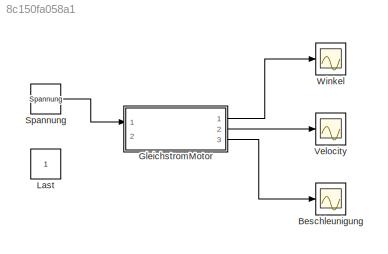
MODEL slx_8c150fa058a1
KIND model
BLOCK [Scope] Beschleunigung
  DataFormat = StructureWithTime
  Floating = off
  LegendLocations = 0.87377     0.89753     0.10398     0.05042
  LimitDataPoints = off
  NumInputPorts = 1
  Ports = [1]
  SampleTime = 0
  SaveName = ScopeData27
  ShowLegends = on
  TimeRange = 0.0001972721074048334
  YMax = -2.730597520382321
  YMin = -4.75631690384965
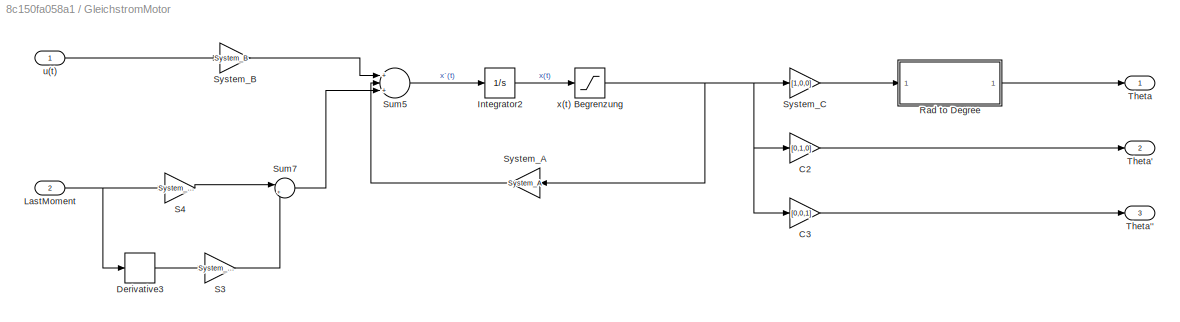
BLOCK [SubSystem] GleichstromMotor
  Ports = [2, 3]
  RequestExecContextInheritance = off
BLOCK [Gain] GleichstromMotor/C2
  Gain = [0,1,0]
  Multiplication = Matrix(K*u)
  OutDataTypeStr = Inherit: Inherit via internal rule
  ParamDataTypeStr = Inherit: Inherit via internal rule
  SaturateOnIntegerOverflow = off
BLOCK [Gain] GleichstromMotor/C3
  Gain = [0,0,1]
  Multiplication = Matrix(K*u)
  OutDataTypeStr = Inherit: Inherit via internal rule
  ParamDataTypeStr = Inherit: Inherit via internal rule
  SaturateOnIntegerOverflow = off
BLOCK [Derivative] GleichstromMotor/Derivative3
BLOCK [Integrator] GleichstromMotor/Integrator2
  Ports = [1, 1]
BLOCK [Inport] GleichstromMotor/LastMoment
  IconDisplay = Port number
  Port = 2
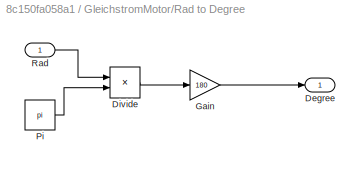
BLOCK [SubSystem] GleichstromMotor/Rad to Degree
  Ports = [1, 1]
  RequestExecContextInheritance = off
BLOCK [Outport] GleichstromMotor/Rad to Degree/Degree
  IconDisplay = Port number
BLOCK [Product] GleichstromMotor/Rad to Degree/Divide
  InputSameDT = off
  Inputs = */
  OutDataTypeStr = Inherit: Inherit via internal rule
  Ports = [2, 1]
  RndMeth = Floor
  SaturateOnIntegerOverflow = off
BLOCK [Gain] GleichstromMotor/Rad to Degree/Gain
  Gain = 180
  OutDataTypeStr = Inherit: Inherit via internal rule
  ParamDataTypeStr = Inherit: Inherit via internal rule
  SaturateOnIntegerOverflow = off
BLOCK [Constant] GleichstromMotor/Rad to Degree/Pi
  Value = pi
BLOCK [Inport] GleichstromMotor/Rad to Degree/Rad
  IconDisplay = Port number
BLOCK [Gain] GleichstromMotor/S3
  Gain = System_S1
  Multiplication = Matrix(K*u)
  OutDataTypeStr = Inherit: Inherit via internal rule
  ParamDataTypeStr = Inherit: Inherit via internal rule
  SaturateOnIntegerOverflow = off
BLOCK [Gain] GleichstromMotor/S4
  Gain = System_S2
  Multiplication = Matrix(K*u)
  OutDataTypeStr = Inherit: Inherit via internal rule
  ParamDataTypeStr = Inherit: Inherit via internal rule
  SaturateOnIntegerOverflow = off
BLOCK [Sum] GleichstromMotor/Sum5
  InputSameDT = off
  Inputs = +|+|-
  OutDataTypeStr = Inherit: Inherit via internal rule
  Ports = [3, 1]
  SaturateOnIntegerOverflow = off
BLOCK [Sum] GleichstromMotor/Sum7
  IconShape = round
  InputSameDT = off
  Inputs = |++
  OutDataTypeStr = Inherit: Inherit via internal rule
  Ports = [2, 1]
  SaturateOnIntegerOverflow = off
BLOCK [Gain] GleichstromMotor/System_A
  Gain = System_A
  Multiplication = Matrix(K*u)
  OutDataTypeStr = Inherit: Inherit via internal rule
  ParamDataTypeStr = Inherit: Inherit via internal rule
  SaturateOnIntegerOverflow = off
BLOCK [Gain] GleichstromMotor/System_B
  Gain = System_B
  Multiplication = Matrix(K*u)
  OutDataTypeStr = Inherit: Inherit via internal rule
  ParamDataTypeStr = Inherit: Inherit via internal rule
  SaturateOnIntegerOverflow = off
BLOCK [Gain] GleichstromMotor/System_C
  Gain = [1,0,0]
  Multiplication = Matrix(K*u)
  OutDataTypeStr = Inherit: Inherit via internal rule
  ParamDataTypeStr = Inherit: Inherit via internal rule
  SaturateOnIntegerOverflow = off
BLOCK [Outport] GleichstromMotor/Theta
  IconDisplay = Port number
BLOCK [Outport] GleichstromMotor/Theta'
  IconDisplay = Port number
  Port = 2
BLOCK [Outport] GleichstromMotor/Theta''
  IconDisplay = Port number
  Port = 3
BLOCK [Inport] GleichstromMotor/u(t)
  IconDisplay = Port number
BLOCK [Saturate] GleichstromMotor/x(t) Begrenzung
  InputPortMap = u0
  LowerLimit = -50
  Ports = [1, 1]
  UpperLimit = [inf,inf,inf]
BLOCK [Constant] Last
BLOCK [Constant] Spannung
  Value = Spannung
BLOCK [Scope] Velocity
  DataFormat = StructureWithTime
  Floating = off
  LegendLocations = 0.87377     0.89753     0.10398     0.05042
  LimitDataPoints = off
  NumInputPorts = 1
  Ports = [1]
  SampleTime = 0
  SaveName = ScopeData28
  ShowLegends = on
  TimeRange = 0.0001972721074048334
  YMax = -2.730597520382321
  YMin = -4.75631690384965
BLOCK [Scope] Winkel
  DataFormat = StructureWithTime
  Floating = off
  LegendLocations = 0.87377     0.89753     0.10398     0.05042
  LimitDataPoints = off
  NumInputPorts = 1
  Ports = [1]
  SampleTime = 0
  ShowLegends = on
  TimeRange = 0.0001972721074048334
  YMax = -2.730597520382321
  YMin = -4.75631690384965
LINE GleichstromMotor/C2:1 -> GleichstromMotor/Theta':1
LINE GleichstromMotor/C3:1 -> GleichstromMotor/Theta'':1
LINE GleichstromMotor/Derivative3:1 -> GleichstromMotor/S3:1
LINE GleichstromMotor/Integrator2:1 -> GleichstromMotor/x(t) Begrenzung:1
NET GleichstromMotor/LastMoment:1 -> GleichstromMotor/Derivative3:1, GleichstromMotor/S4:1
LINE GleichstromMotor/Rad to Degree/Divide:1 -> GleichstromMotor/Rad to Degree/Gain:1
LINE GleichstromMotor/Rad to Degree/Gain:1 -> GleichstromMotor/Rad to Degree/Degree:1
LINE GleichstromMotor/Rad to Degree/Pi:1 -> GleichstromMotor/Rad to Degree/Divide:2
LINE GleichstromMotor/Rad to Degree/Rad:1 -> GleichstromMotor/Rad to Degree/Divide:1
LINE GleichstromMotor/Rad to Degree:1 -> GleichstromMotor/Theta:1
LINE GleichstromMotor/S3:1 -> GleichstromMotor/Sum7:2
LINE GleichstromMotor/S4:1 -> GleichstromMotor/Sum7:1
LINE GleichstromMotor/Sum5:1 -> GleichstromMotor/Integrator2:1
LINE GleichstromMotor/Sum7:1 -> GleichstromMotor/Sum5:3
LINE GleichstromMotor/System_A:1 -> GleichstromMotor/Sum5:2
LINE GleichstromMotor/System_B:1 -> GleichstromMotor/Sum5:1
LINE GleichstromMotor/System_C:1 -> GleichstromMotor/Rad to Degree:1
LINE GleichstromMotor/u(t):1 -> GleichstromMotor/System_B:1
NET GleichstromMotor/x(t) Begrenzung:1 -> GleichstromMotor/C2:1, GleichstromMotor/C3:1, GleichstromMotor/System_A:1, GleichstromMotor/System_C:1
LINE GleichstromMotor:1 -> Winkel:1
LINE GleichstromMotor:2 -> Velocity:1
LINE GleichstromMotor:3 -> Beschleunigung:1
LINE Spannung:1 -> GleichstromMotor:1
note: NET lines group one-source signal fan-out (src -> all destinations, sorted); 1:1 wires keep LINE
